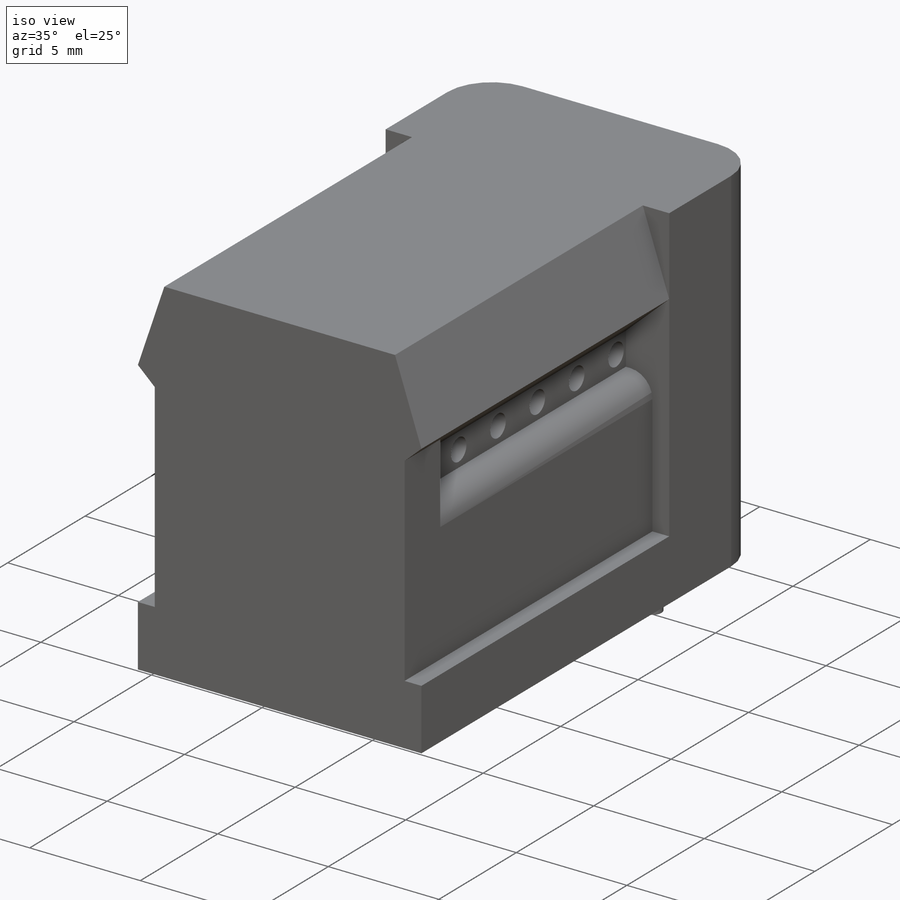
[diagram: iso view]
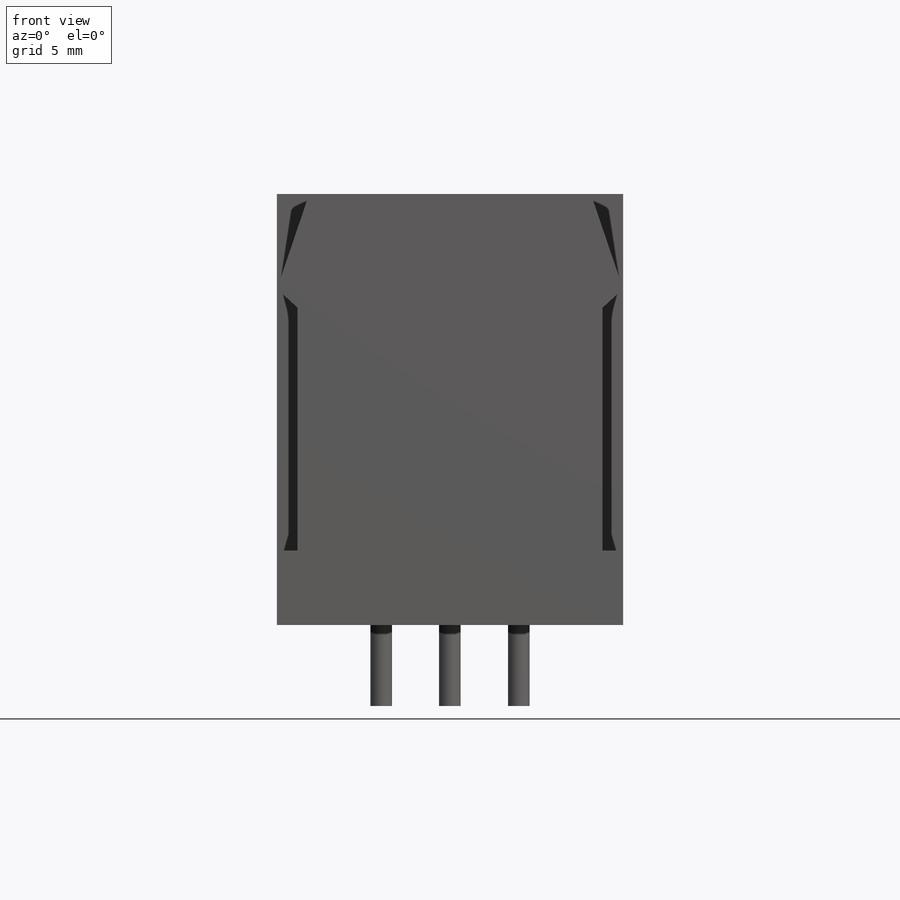
[diagram: front view]
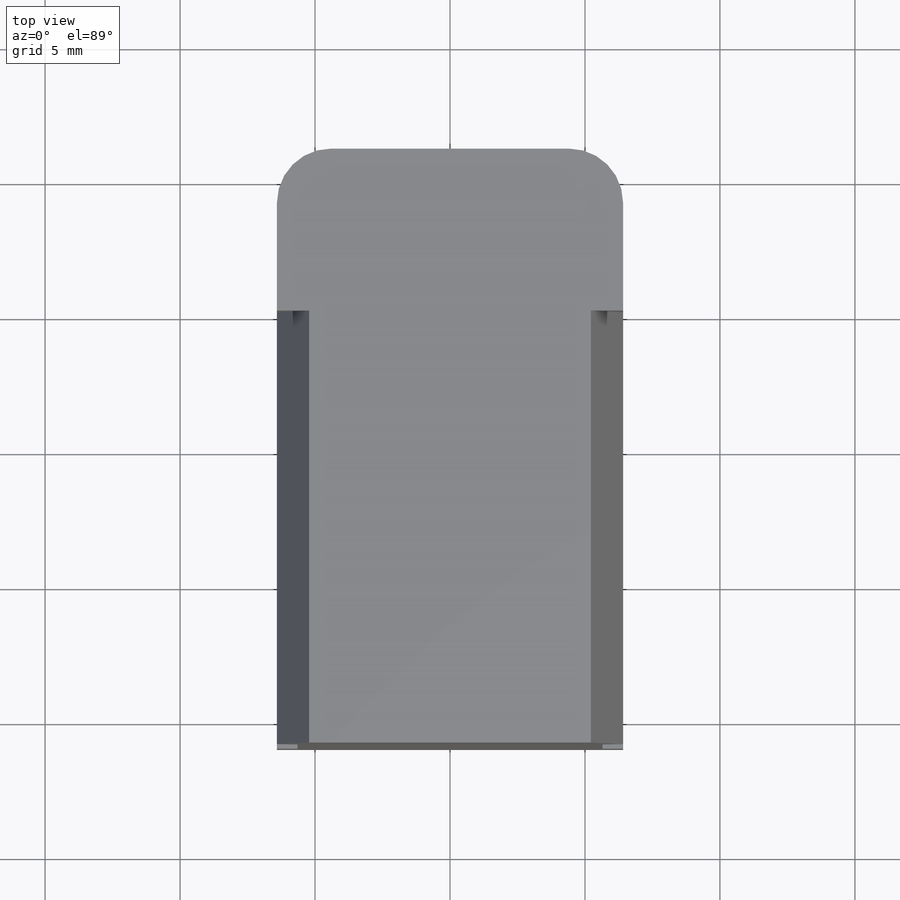
[diagram: top view]
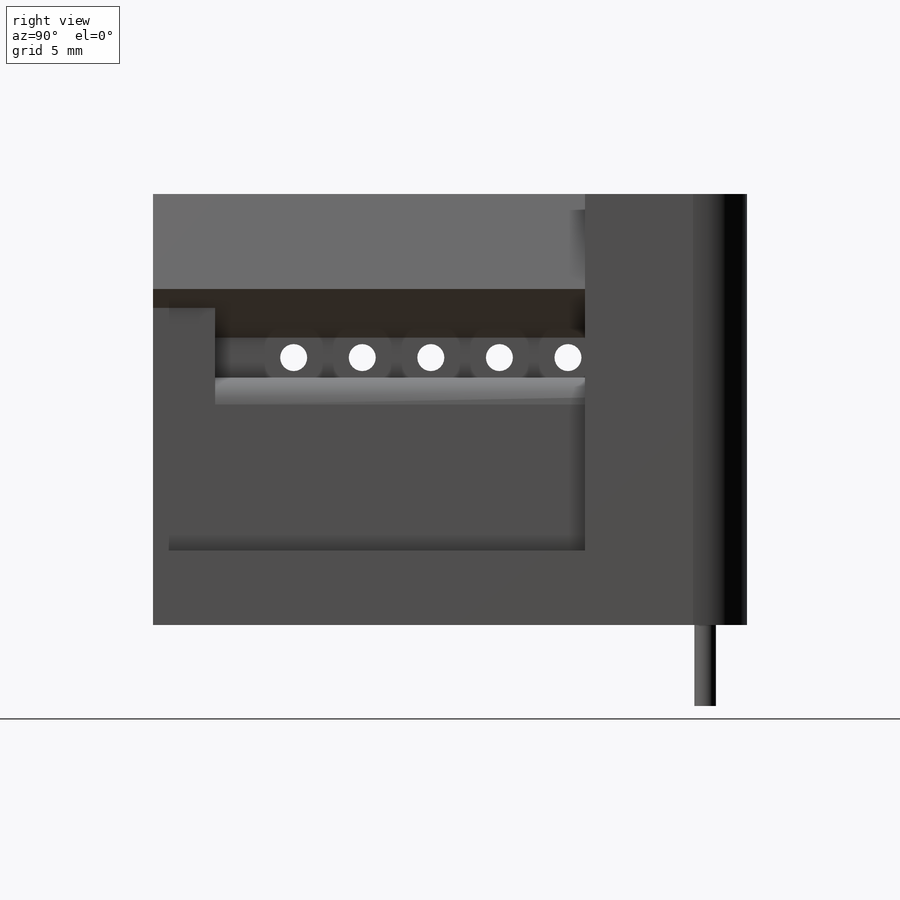
[diagram: right view]
SOLIDWORKS PART (.sldprt)
format: sldprt  version: not decoded by parser v0  size: 274,944 bytes
history: native  units: mm
features: sketch x7, extrude x5, plane x4, material x1, cut_extrude x1, pattern_linear x1 (+8 scaffold rows collapsed)
feature tree (27):
  scaffold x8  (default folders/planes/origin — collapsed)
  material  "Matériau <non spécifié>"
  plane  "Plan de face"
  plane  "Plan de dessus"
  plane  "Plan de droite"
  sketch  "Esquisse1"  dims[c1.D2=1.0mm c1.D1=1.2mm c1.D3=0.7607mm c1.D4=~5.408056mm c1.D5=~1.476309mm c1.D6=~1.803197mm c1.D7=1.9607mm c2.D7=~132.603815deg c2.D8=3.714mm c2.D9=3.714mm c3.D9=~113.845164deg c3.D10=~3.516718mm c4.D10=~251.24135deg c5.D10=6.41mm]
  extrude  "Extrusion1"  Depth=16mm
  plane  "Plan1"
  sketch  "Esquisse2"  dims[D2=2.0mm D1=6.0mm]
  extrude  "Boss.-Extru.1"  [1 undecoded]
  sketch  "Esquisse3"  dims[D1=1.0mm D2=~0.668514mm D3=6.63mm]
  cut_extrude  "Enlèv. mat.-Extru.1"  [1 undecoded]
  pattern_linear  "Répétition linéaire1"  Count1=5 Count2=1 Spacing1=2.54mm Spacing2=10mm
  sketch  "Esquisse4"  dims[D1=2.3mm]
  extrude  "Boss.-Extru.2"  Depth=13mm
  sketch  "Esquisse5"
  sketch  "Esquisse7"  dims[D1=2.3mm]
  extrude  "Boss.-Extru.3"  Depth=13mm
  sketch  "Esquisse8"  dims[D2=0.8mm D3=0.8mm D1=1.55mm D4=2.54mm]
  extrude  "Boss.-Extru.4"  Depth=3mm
decode coverage: 11 of 14 modeling features carry decoded parameters
note: ~ marks probable driven/reference dimensions
note: 2 parameter values undecoded
note: suppression state not decoded; provenance and decode notes live in map.json
